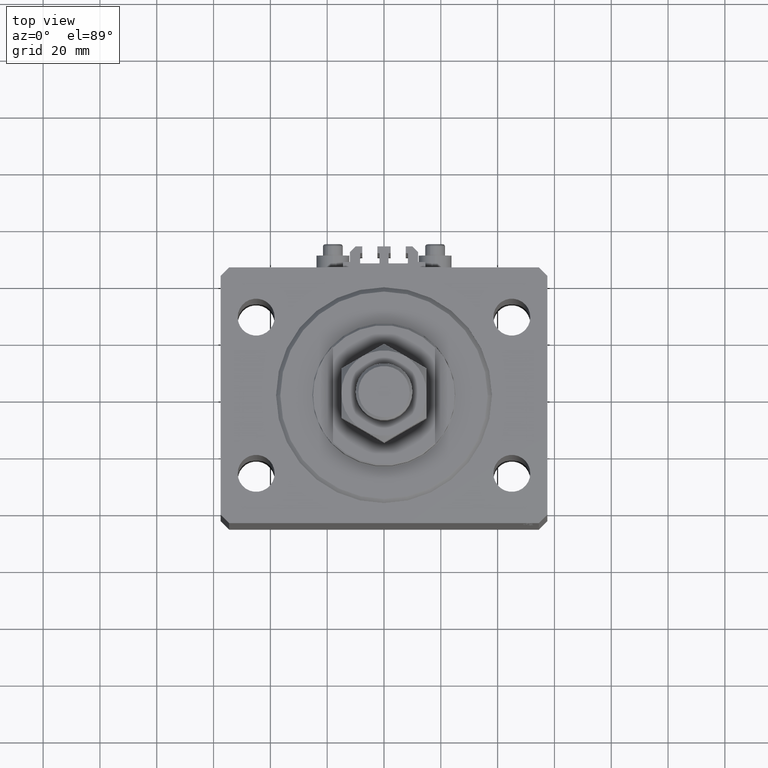
[diagram: clean part render]
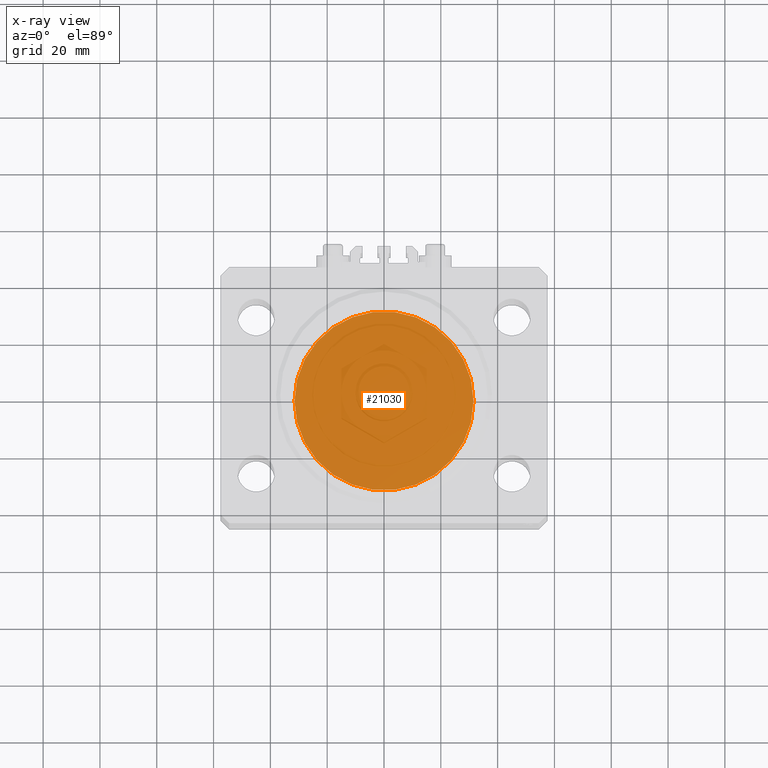
[diagram: x-ray — body ghosted, one internal face saturated and labeled with its STEP entity id]
A machine part, top view, then the same camera in x-ray: the body is ghosted and one INTERNAL B-rep face — a face not visible from any outside direction — is saturated and labeled: STEP entity #21030.
In plain terms, the highlighted planar face has unit normal (0, 0, 1).
Its self-contained STEP definition (entity closure, byte-faithful):
#2048 = VERTEX_POINT ( 'NONE', #27641 ) ;
#3074 = CIRCLE ( 'NONE', #18087, 31.50000000000000000 ) ;
#9618 = VERTEX_POINT ( 'NONE', #16264 ) ;
#10167 = EDGE_LOOP ( 'NONE', ( #36993, #22951 ) ) ;
#11912 = FACE_OUTER_BOUND ( 'NONE', #10167, .T. ) ;
#16264 = CARTESIAN_POINT ( 'NONE',  ( -31.50000000000000000, 0.000000000000000000, 0.000000000000000000 ) ) ;
#18087 = AXIS2_PLACEMENT_3D ( 'NONE', #34548, #46138, #38251 ) ;
#20936 = EDGE_CURVE ( 'NONE', #2048, #9618, #46286, .T. ) ;
#21030 = ADVANCED_FACE ( 'NONE', ( #11912 ), #27014, .F. ) ;
#22951 = ORIENTED_EDGE ( 'NONE', *, *, #20936, .F. ) ;
#24023 = DIRECTION ( 'NONE',  ( 0.000000000000000000, 0.000000000000000000, 1.000000000000000000 ) ) ;
#27014 = PLANE ( 'NONE',  #41559 ) ;
#27641 = CARTESIAN_POINT ( 'NONE',  ( 31.50000000000000000, 3.857637417314162689E-15, 0.000000000000000000 ) ) ;
#27986 = CARTESIAN_POINT ( 'NONE',  ( 0.000000000000000000, 0.000000000000000000, 0.000000000000000000 ) ) ;
#29754 = AXIS2_PLACEMENT_3D ( 'NONE', #27986, #34681, #43044 ) ;
#34548 = CARTESIAN_POINT ( 'NONE',  ( 0.000000000000000000, 0.000000000000000000, 0.000000000000000000 ) ) ;
#34681 = DIRECTION ( 'NONE',  ( 0.000000000000000000, 0.000000000000000000, 1.000000000000000000 ) ) ;
#36993 = ORIENTED_EDGE ( 'NONE', *, *, #42244, .F. ) ;
#38251 = DIRECTION ( 'NONE',  ( 1.000000000000000000, 0.000000000000000000, 0.000000000000000000 ) ) ;
#39096 = DIRECTION ( 'NONE',  ( 1.000000000000000000, 0.000000000000000000, -0.000000000000000000 ) ) ;
#41559 = AXIS2_PLACEMENT_3D ( 'NONE', #42082, #24023, #39096 ) ;
#42082 = CARTESIAN_POINT ( 'NONE',  ( 0.000000000000000000, 0.000000000000000000, 0.000000000000000000 ) ) ;
#42244 = EDGE_CURVE ( 'NONE', #9618, #2048, #3074, .T. ) ;
#43044 = DIRECTION ( 'NONE',  ( 1.000000000000000000, 0.000000000000000000, 0.000000000000000000 ) ) ;
#46138 = DIRECTION ( 'NONE',  ( 0.000000000000000000, 0.000000000000000000, 1.000000000000000000 ) ) ;
#46286 = CIRCLE ( 'NONE', #29754, 31.50000000000000000 ) ;